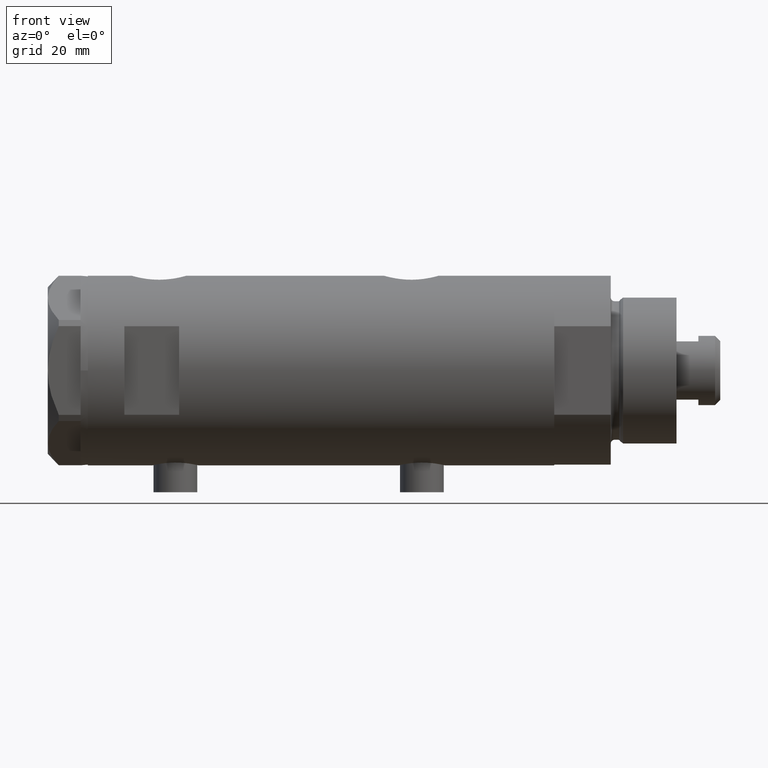
[diagram: clean part render]
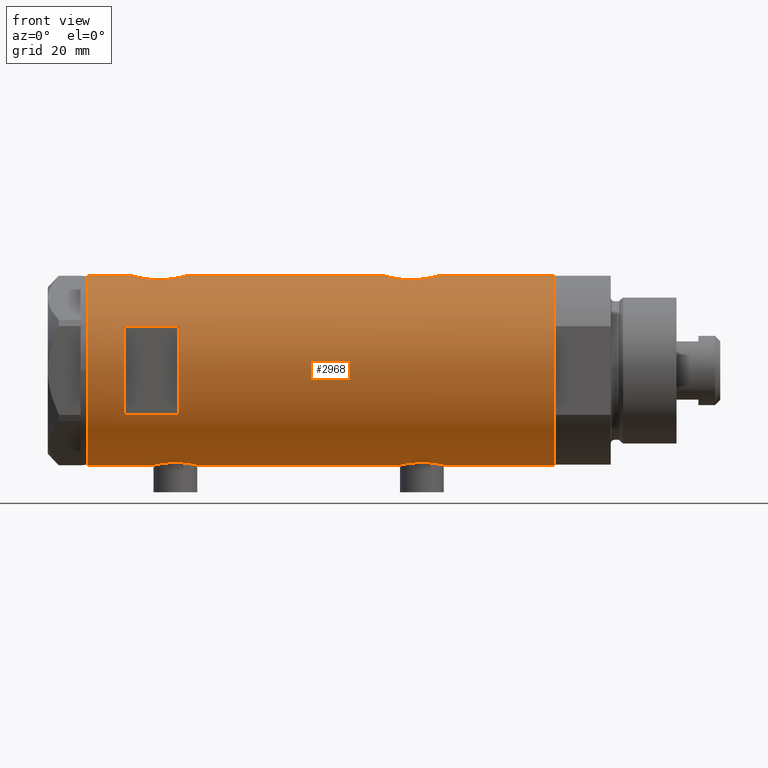
[diagram: same view with one face highlighted and labeled with its STEP entity id]
A machine part, front view. The second image highlights one B-rep face of the part: STEP entity #2968.
In plain terms, the highlighted cylindrical surface (partial cylindrical patch) has radius 26 mm, axis along (-1, -0, 0).
Its self-contained STEP definition (entity closure, byte-faithful):
#2 = DIRECTION ( 'NONE',  ( -0.000000000000000000, -0.000000000000000000, -1.000000000000000000 ) ) ;
#20 = CARTESIAN_POINT ( 'NONE',  ( 25.98569226047905545, -0.9886551788957204101, -32.20082376600176843 ) ) ;
#24 = CARTESIAN_POINT ( 'NONE',  ( 26.00000000000000355, 0.000000000000000000, -63.95000000000000995 ) ) ;
#65 = LINE ( 'NONE', #424, #3496 ) ;
#103 = CARTESIAN_POINT ( 'NONE',  ( 25.17393786935996047, -6.507882790539420093, -28.51037333344033442 ) ) ;
#149 = CARTESIAN_POINT ( 'NONE',  ( -25.31551596256916525, -5.928819821281959612, 37.92988508095918121 ) ) ;
#168 = ORIENTED_EDGE ( 'NONE', *, *, #3292, .F. ) ;
#187 = CARTESIAN_POINT ( 'NONE',  ( 12.12435565298214080, -23.00000000000000355, 53.94999999999999574 ) ) ;
#194 = CARTESIAN_POINT ( 'NONE',  ( 12.12435565298214080, -23.00000000000000355, 38.94999999999999574 ) ) ;
#196 = CARTESIAN_POINT ( 'NONE',  ( -26.00000000000000355, 3.184081677783118585E-15, 63.95000000000000995 ) ) ;
#215 = CARTESIAN_POINT ( 'NONE',  ( -25.78943824387523875, -3.306687742228911819, -32.95754138783468079 ) ) ;
#230 = CARTESIAN_POINT ( 'NONE',  ( 25.41756773306325812, -5.475260495868972122, 49.58140873656950731 ) ) ;
#231 = CARTESIAN_POINT ( 'NONE',  ( -25.25769689814630325, -6.168504065326071206, 38.92353364703254925 ) ) ;
#233 = ORIENTED_EDGE ( 'NONE', *, *, #1967, .F. ) ;
#275 = CARTESIAN_POINT ( 'NONE',  ( 25.00829008792691965, -7.115081037226468119, 46.87301003740818572 ) ) ;
#287 = CARTESIAN_POINT ( 'NONE',  ( -25.67167563980648382, -4.129238867693853621, -32.35934056431106143 ) ) ;
#304 = EDGE_CURVE ( 'NONE', #657, #4723, #2133, .T. ) ;
#356 = VERTEX_POINT ( 'NONE', #4112 ) ;
#367 = AXIS2_PLACEMENT_3D ( 'NONE', #4641, #4259, #4307 ) ;
#389 = CARTESIAN_POINT ( 'NONE',  ( 25.52567976009756379, -4.956266804246105551, -19.09980072540905383 ) ) ;
#413 = CARTESIAN_POINT ( 'NONE',  ( 25.62983961939740496, -4.376509667782456425, -30.84558499042960378 ) ) ;
#424 = CARTESIAN_POINT ( 'NONE',  ( -26.00000000000000355, 3.184081677783118585E-15, -63.95000000000000995 ) ) ;
#436 = CARTESIAN_POINT ( 'NONE',  ( 26.00000000000000000, -0.4982617809740598758, -32.24999999999999289 ) ) ;
#448 = CARTESIAN_POINT ( 'NONE',  ( -26.00000000000000355, 3.184081677783118585E-15, -63.95000000000000995 ) ) ;
#465 = CARTESIAN_POINT ( 'NONE',  ( 24.96970063328116751, -7.247045583599691199, -26.69719214854802658 ) ) ;
#494 = VERTEX_POINT ( 'NONE', #2860 ) ;
#543 = AXIS2_PLACEMENT_3D ( 'NONE', #2387, #2877, #2833 ) ;
#593 = CARTESIAN_POINT ( 'NONE',  ( -25.23758491649666169, -6.250144606721704577, 40.36011699571809430 ) ) ;
#604 = DIRECTION ( 'NONE',  ( 0.000000000000000000, 0.000000000000000000, 1.000000000000000000 ) ) ;
#614 = CARTESIAN_POINT ( 'NONE',  ( 25.93098857934040424, -1.953835360821270184, 37.19226335297439334 ) ) ;
#615 = CARTESIAN_POINT ( 'NONE',  ( -25.87202607293666645, -2.583404329177992675, 34.25526333145487712 ) ) ;
#640 = CARTESIAN_POINT ( 'NONE',  ( 25.78902964777116225, -3.336582972512940781, 37.71524159542261145 ) ) ;
#655 = CARTESIAN_POINT ( 'NONE',  ( -25.64593536028935716, -4.278686337618962554, -23.08968397039123133 ) ) ;
#657 = VERTEX_POINT ( 'NONE', #993 ) ;
#665 = CARTESIAN_POINT ( 'NONE',  ( 25.11342038069227200, -6.734617143597205313, 47.78770695790494472 ) ) ;
#679 = CARTESIAN_POINT ( 'NONE',  ( -25.25769689814630325, -6.168504065326071206, -28.67646635296746283 ) ) ;
#700 = CARTESIAN_POINT ( 'NONE',  ( -25.38744165544135711, -5.612847683295910883, -30.42987583238477001 ) ) ;
#701 = CARTESIAN_POINT ( 'NONE',  ( -25.85385060263650203, -2.778671585188186910, 45.56314451304237423 ) ) ;
#757 = CARTESIAN_POINT ( 'NONE',  ( -25.42883439573800430, -5.424786127492328802, 43.08081457260909275 ) ) ;
#767 = CARTESIAN_POINT ( 'NONE',  ( -26.00000000000000355, 3.184081677783118585E-15, -63.95000000000000995 ) ) ;
#778 = CARTESIAN_POINT ( 'NONE',  ( 24.89475831528845617, -7.500067228253131546, -25.24337428253536331 ) ) ;
#831 = CARTESIAN_POINT ( 'NONE',  ( -25.95206678899177533, -1.628763264760259677, -21.60199186669786542 ) ) ;
#832 = CARTESIAN_POINT ( 'NONE',  ( 26.00000000000000355, -3.975025925197986111E-20, -17.25000000000000000 ) ) ;
#856 = CARTESIAN_POINT ( 'NONE',  ( 24.89854802586675930, -7.487520416261735257, -24.25184316422095776 ) ) ;
#858 = VERTEX_POINT ( 'NONE', #2063 ) ;
#859 = B_SPLINE_CURVE_WITH_KNOTS ( 'NONE', 3,
 ( #832, #4487, #1286, #2886, #1235, #4882, #2808, #2100, #389, #3650, #2840, #1653, #4411, #4461, #2787, #3995, #4071, #3182, #4389, #856, #888, #778, #2422, #3706, #465, #2394, #2043, #2501, #103, #4857, #4021, #2447, #2141, #1602, #413, #2863, #2077, #2019, #3627, #20, #436, #1782 ),
 .UNSPECIFIED., .F., .F.,
 ( 4, 2, 2, 2, 2, 2, 2, 2, 2, 2, 2, 2, 2, 2, 2, 2, 2, 2, 2, 2, 4 ),
 ( 0.02357432247332886047, 0.02504731828495720264, 0.02652031409658554134, 0.02799330990821388351, 0.02946630571984222569, 0.03020280362565639504, 0.03093930153147056439, 0.03241229734309891003, 0.03388529315472725567, 0.03462179106054142502, 0.03535828896635559437, 0.03683128477798394695, 0.03756778268379813018, 0.03830428058961231341, 0.03977727640124066599, 0.04125027221286903245, 0.04198677011868321568, 0.04272326802449739891, 0.04419626383612575149, 0.04566925964775410407, 0.04714225545938246359 ),
 .UNSPECIFIED. ) ;
#888 = CARTESIAN_POINT ( 'NONE',  ( 24.89478872726946079, -7.499966281647700406, -24.50178149365219227 ) ) ;
#891 = VECTOR ( 'NONE', #3246, 1000.000000000000000 ) ;
#895 = DIRECTION ( 'NONE',  ( 0.000000000000000000, 0.000000000000000000, 1.000000000000000000 ) ) ;
#928 = CARTESIAN_POINT ( 'NONE',  ( -25.72076778631231164, -3.815670258243487378, 34.98312189468123279 ) ) ;
#939 = EDGE_CURVE ( 'NONE', #2128, #858, #3330, .T. ) ;
#947 = DIRECTION ( 'NONE',  ( 0.000000000000000000, 0.000000000000000000, 1.000000000000000000 ) ) ;
#972 = ORIENTED_EDGE ( 'NONE', *, *, #2587, .F. ) ;
#978 = CIRCLE ( 'NONE', #367, 26.00000000000000355 ) ;
#985 = CARTESIAN_POINT ( 'NONE',  ( 24.91324908721446008, -7.438459228814657820, 45.44017499374189839 ) ) ;
#993 = CARTESIAN_POINT ( 'NONE',  ( 26.00000000000000355, -3.975025925197986111E-20, -17.25000000000000000 ) ) ;
#1027 = EDGE_CURVE ( 'NONE', #3854, #4723, #3373, .T. ) ;
#1036 = CARTESIAN_POINT ( 'NONE',  ( 0.000000000000000000, 0.000000000000000000, -63.95000000000000995 ) ) ;
#1048 = CARTESIAN_POINT ( 'NONE',  ( -25.57167894663062313, -4.701762988462092174, -23.52719549807583022 ) ) ;
#1065 = VERTEX_POINT ( 'NONE', #194 ) ;
#1105 = EDGE_CURVE ( 'NONE', #3618, #2757, #1110, .T. ) ;
#1110 = LINE ( 'NONE', #4004, #1807 ) ;
#1127 = CARTESIAN_POINT ( 'NONE',  ( -25.67063510297210271, -4.128418051804841227, 44.64682575271267240 ) ) ;
#1132 = CIRCLE ( 'NONE', #543, 26.00000000000000355 ) ;
#1194 = LINE ( 'NONE', #767, #891 ) ;
#1235 = CARTESIAN_POINT ( 'NONE',  ( 25.89059789403176381, -2.425642437452261380, -17.63622552757698969 ) ) ;
#1279 = VERTEX_POINT ( 'NONE', #187 ) ;
#1286 = CARTESIAN_POINT ( 'NONE',  ( 25.98599366666248756, -0.9828433289544070695, -17.29811598276525686 ) ) ;
#1379 = CARTESIAN_POINT ( 'NONE',  ( -25.38662204309617110, -5.616507264474310368, 42.72199377719325497 ) ) ;
#1413 = CARTESIAN_POINT ( 'NONE',  ( 24.95200646071793571, -7.307522494171279526, 42.74392435812723079 ) ) ;
#1429 = CARTESIAN_POINT ( 'NONE',  ( -25.28680988956730502, -6.048472998962281189, -29.27627694188244334 ) ) ;
#1432 = EDGE_CURVE ( 'NONE', #858, #2109, #2621, .T. ) ;
#1437 = CARTESIAN_POINT ( 'NONE',  ( 25.01107424167500071, -7.102941973849614676, 42.02937151337422250 ) ) ;
#1457 = CARTESIAN_POINT ( 'NONE',  ( 24.89478872726946435, -7.499966281647702182, 44.69821850634780702 ) ) ;
#1474 = CARTESIAN_POINT ( 'NONE',  ( -25.67063510297209561, -4.128418051804845668, -22.95317424728735389 ) ) ;
#1476 = CARTESIAN_POINT ( 'NONE',  ( -25.95206678899177888, -1.628763264760260565, 45.99800813330215021 ) ) ;
#1480 = VECTOR ( 'NONE', #5146, 1000.000000000000000 ) ;
#1488 = CARTESIAN_POINT ( 'NONE',  ( 25.59665538672497576, -4.580438224580679396, 50.40889127712392082 ) ) ;
#1507 = CARTESIAN_POINT ( 'NONE',  ( -25.74330903162726614, -3.648508829439214285, 45.02867714715799252 ) ) ;
#1546 = EDGE_CURVE ( 'NONE', #1065, #1279, #1994, .T. ) ;
#1552 = CARTESIAN_POINT ( 'NONE',  ( 12.12435565298214080, -23.00000000000000355, -63.95000000000000995 ) ) ;
#1579 = CARTESIAN_POINT ( 'NONE',  ( -25.99999999999999645, -0.4144764235405757891, -21.39999999999999858 ) ) ;
#1602 = CARTESIAN_POINT ( 'NONE',  ( 25.59500516383205593, -4.575229401795793294, -30.69787755065420143 ) ) ;
#1626 = DIRECTION ( 'NONE',  ( 1.000000000000000000, 0.000000000000000000, 0.000000000000000000 ) ) ;
#1653 = CARTESIAN_POINT ( 'NONE',  ( 25.31004928890824957, -5.952041021437452173, -20.18019400116494211 ) ) ;
#1680 = CARTESIAN_POINT ( 'NONE',  ( -26.00000000000000355, 9.891741702313250758E-16, -21.40000000000000568 ) ) ;
#1695 = ORIENTED_EDGE ( 'NONE', *, *, #2426, .F. ) ;
#1706 = VERTEX_POINT ( 'NONE', #2261 ) ;
#1714 = CARTESIAN_POINT ( 'NONE',  ( 0.000000000000000000, 0.000000000000000000, 53.94999999999999574 ) ) ;
#1747 = CARTESIAN_POINT ( 'NONE',  ( -25.28680988956730857, -6.048472998962280300, 38.32372305811758650 ) ) ;
#1760 = ORIENTED_EDGE ( 'NONE', *, *, #1105, .F. ) ;
#1782 = CARTESIAN_POINT ( 'NONE',  ( 26.00000000000000355, 6.604469597105595072E-16, -32.25000000000000000 ) ) ;
#1798 = CARTESIAN_POINT ( 'NONE',  ( -26.00000000000000000, -0.4086738135806028960, 33.70000000000000995 ) ) ;
#1807 = VECTOR ( 'NONE', #2, 1000.000000000000000 ) ;
#1832 = CARTESIAN_POINT ( 'NONE',  ( 25.78993643992928853, -3.329561377902404029, 51.18821560278738048 ) ) ;
#1833 = CARTESIAN_POINT ( 'NONE',  ( -25.25025691038242570, -6.198787452305309920, 39.12558834604205771 ) ) ;
#1846 = CARTESIAN_POINT ( 'NONE',  ( -25.23758491649666169, -6.250144606721703688, -27.23988300428193554 ) ) ;
#1854 = CARTESIAN_POINT ( 'NONE',  ( 24.89475831528844552, -7.500067228253129770, 43.95662571746462532 ) ) ;
#1876 = CARTESIAN_POINT ( 'NONE',  ( 25.52449676677459323, -4.953491517965875168, 38.81325508665924673 ) ) ;
#1963 = VERTEX_POINT ( 'NONE', #196 ) ;
#1967 = EDGE_CURVE ( 'NONE', #356, #4855, #3317, .T. ) ;
#1994 = LINE ( 'NONE', #1552, #1480 ) ;
#2019 = CARTESIAN_POINT ( 'NONE',  ( 25.88994451797512042, -2.432613607265603495, -31.86140968713203137 ) ) ;
#2029 = DIRECTION ( 'NONE',  ( 1.000000000000000000, 0.000000000000000000, 0.000000000000000000 ) ) ;
#2043 = CARTESIAN_POINT ( 'NONE',  ( 25.03461301890608581, -7.019803056070506919, -27.40183183106897147 ) ) ;
#2058 = ORIENTED_EDGE ( 'NONE', *, *, #2177, .F. ) ;
#2060 = CARTESIAN_POINT ( 'NONE',  ( 26.00000000000000355, 2.393127611988522640E-16, 36.95000000000000284 ) ) ;
#2063 = CARTESIAN_POINT ( 'NONE',  ( -26.00000000000000355, 3.184077527325983904E-15, -33.90000000000001279 ) ) ;
#2077 = CARTESIAN_POINT ( 'NONE',  ( 25.78902964777116225, -3.336582972512953660, -31.48475840457738073 ) ) ;
#2100 = CARTESIAN_POINT ( 'NONE',  ( 25.59665538672496865, -4.580438224580680284, -18.79110872287611400 ) ) ;
#2109 = VERTEX_POINT ( 'NONE', #1680 ) ;
#2128 = VERTEX_POINT ( 'NONE', #2472 ) ;
#2133 = LINE ( 'NONE', #2508, #2730 ) ;
#2141 = CARTESIAN_POINT ( 'NONE',  ( 25.52449676677458967, -4.953491517965880497, -30.38674491334075256 ) ) ;
#2143 = CARTESIAN_POINT ( 'NONE',  ( -25.57228991600092627, -4.705691472451699831, 35.81660309875347536 ) ) ;
#2159 = ORIENTED_EDGE ( 'NONE', *, *, #1546, .F. ) ;
#2177 = EDGE_CURVE ( 'NONE', #657, #1706, #859, .T. ) ;
#2213 = CARTESIAN_POINT ( 'NONE',  ( -25.87202607293667000, -2.583404329177994008, -33.34473666854514562 ) ) ;
#2221 = CARTESIAN_POINT ( 'NONE',  ( 26.00000000000001066, -0.4982617809740571002, 36.95000000000000995 ) ) ;
#2222 = CARTESIAN_POINT ( 'NONE',  ( -25.85288666140180780, -2.767917424206675747, 34.34257790010329359 ) ) ;
#2252 = CARTESIAN_POINT ( 'NONE',  ( 26.00000000000000355, 2.393127611988522640E-16, 36.95000000000000284 ) ) ;
#2261 = CARTESIAN_POINT ( 'NONE',  ( 26.00000000000000355, 6.604469597105595072E-16, -32.25000000000000000 ) ) ;
#2267 = CARTESIAN_POINT ( 'NONE',  ( -25.99009752186832500, -0.8230863847107482423, 46.15917071406681060 ) ) ;
#2278 = CARTESIAN_POINT ( 'NONE',  ( 24.96970063328116751, -7.247045583599692975, 42.50280785145199758 ) ) ;
#2292 = CARTESIAN_POINT ( 'NONE',  ( -25.52190669608696183, -4.968444991210423822, -31.46341092192486855 ) ) ;
#2294 = EDGE_LOOP ( 'NONE', ( #1695, #1760, #168, #2159 ) ) ;
#2300 = CARTESIAN_POINT ( 'NONE',  ( 25.72912156655465665, -3.765948295762488129, 37.94557024600776174 ) ) ;
#2372 = CARTESIAN_POINT ( 'NONE',  ( -25.49846181844015192, -5.083495422175122513, 43.59177503382596797 ) ) ;
#2387 = CARTESIAN_POINT ( 'NONE',  ( 0.000000000000000000, 0.000000000000000000, 63.95000000000000995 ) ) ;
#2394 = CARTESIAN_POINT ( 'NONE',  ( 25.01107424167501136, -7.102941973849615565, -27.17062848662579100 ) ) ;
#2422 = CARTESIAN_POINT ( 'NONE',  ( 24.90947356773249766, -7.451722770779339200, -25.73190841828152742 ) ) ;
#2426 = EDGE_CURVE ( 'NONE', #2757, #1065, #978, .T. ) ;
#2435 = DIRECTION ( 'NONE',  ( -0.000000000000000000, 0.000000000000000000, -1.000000000000000000 ) ) ;
#2447 = CARTESIAN_POINT ( 'NONE',  ( 25.48871066912673200, -5.133852125086503015, -30.22290306743977695 ) ) ;
#2458 = DIRECTION ( 'NONE',  ( 0.000000000000000000, 0.000000000000000000, 1.000000000000000000 ) ) ;
#2472 = CARTESIAN_POINT ( 'NONE',  ( -26.00000000000000355, 3.184081677783118585E-15, -63.95000000000000995 ) ) ;
#2501 = CARTESIAN_POINT ( 'NONE',  ( 25.11243836838846377, -6.738202653785828389, -28.07956649155160278 ) ) ;
#2508 = CARTESIAN_POINT ( 'NONE',  ( 26.00000000000000355, 0.000000000000000000, -63.95000000000000995 ) ) ;
#2512 = CARTESIAN_POINT ( 'NONE',  ( 26.00000000000000355, 0.000000000000000000, -63.95000000000000995 ) ) ;
#2534 = LINE ( 'NONE', #2512, #5008 ) ;
#2563 = CARTESIAN_POINT ( 'NONE',  ( -25.28632996747171902, -6.050474653715411932, 41.56911870841535972 ) ) ;
#2587 = EDGE_CURVE ( 'NONE', #1963, #4464, #1132, .T. ) ;
#2619 = CARTESIAN_POINT ( 'NONE',  ( 25.17393786935996403, -6.507882790539422757, 40.68962666655968974 ) ) ;
#2621 = B_SPLINE_CURVE_WITH_KNOTS ( 'NONE', 3,
 ( #3055, #3472, #5026, #3085, #4996, #2213, #2690, #4601, #215, #4676, #287, #2664, #2292, #3921, #700, #2635, #1429, #679, #2712, #3503, #4311, #1846, #3845, #3034, #5047, #4625, #5102, #4645, #4699, #1048, #5069, #655, #1474, #3108, #2763, #4775, #5173, #3993, #831, #3530, #1579, #3602 ),
 .UNSPECIFIED., .F., .F.,
 ( 4, 2, 2, 2, 2, 2, 2, 2, 2, 2, 2, 2, 2, 2, 2, 2, 2, 2, 2, 2, 4 ),
 ( 0.01961238453869442941, 0.02083783025472766420, 0.02206327597076090247, 0.02267599882877751813, 0.02328872168679413032, 0.02451416740282735818, 0.02573961311886058950, 0.02696505883489381389, 0.02819050455092704521, 0.02880322740894365394, 0.02941595026696026266, 0.03064139598299348011, 0.03186684169902669755, 0.03309228741505991500, 0.03370501027307653413, 0.03431773313109314633, 0.03493045598910975852, 0.03554317884712637071, 0.03676862456315959510, 0.03799407027919281948, 0.03921951599522604387 ),
 .UNSPECIFIED. ) ;
#2635 = CARTESIAN_POINT ( 'NONE',  ( -25.31551596256915815, -5.928819821281960500, -29.67011491904085929 ) ) ;
#2640 = CARTESIAN_POINT ( 'NONE',  ( 25.31004928890825312, -5.952041021437453949, 49.01980599883506073 ) ) ;
#2664 = CARTESIAN_POINT ( 'NONE',  ( -25.57228991600092272, -4.705691472451700719, -31.78339690124654027 ) ) ;
#2674 = CARTESIAN_POINT ( 'NONE',  ( 25.89059789403177447, -2.425642437452259603, 51.56377447242302736 ) ) ;
#2679 = FACE_OUTER_BOUND ( 'NONE', #2714, .T. ) ;
#2690 = CARTESIAN_POINT ( 'NONE',  ( -25.85288666140181135, -2.767917424206676635, -33.25742209989672205 ) ) ;
#2702 = FACE_BOUND ( 'NONE', #2294, .T. ) ;
#2712 = CARTESIAN_POINT ( 'NONE',  ( -25.25025691038242215, -6.198787452305309920, -28.47441165395796503 ) ) ;
#2713 = CARTESIAN_POINT ( 'NONE',  ( -25.59645788645698872, -4.565358797148513226, 44.22330529203480864 ) ) ;
#2714 = EDGE_LOOP ( 'NONE', ( #4649, #5164, #4833, #2058, #4994, #2887, #3431, #972, #4967, #233, #4189, #3221 ) ) ;
#2730 = VECTOR ( 'NONE', #947, 1000.000000000000000 ) ;
#2738 = CIRCLE ( 'NONE', #5161, 26.00000000000000355 ) ;
#2739 = CARTESIAN_POINT ( 'NONE',  ( -25.81232680456767170, -3.137210741985118290, 45.37113657221578933 ) ) ;
#2740 = VECTOR ( 'NONE', #4953, 1000.000000000000000 ) ;
#2757 = VERTEX_POINT ( 'NONE', #4584 ) ;
#2763 = CARTESIAN_POINT ( 'NONE',  ( -25.74330903162726614, -3.648508829439216061, -22.57132285284203732 ) ) ;
#2787 = CARTESIAN_POINT ( 'NONE',  ( 25.11342038069227200, -6.734617143597201760, -21.41229304209504747 ) ) ;
#2808 = CARTESIAN_POINT ( 'NONE',  ( 25.72873412774686486, -3.768477344985556421, -18.24712539855537585 ) ) ;
#2833 = DIRECTION ( 'NONE',  ( 1.000000000000000000, 0.000000000000000000, 0.000000000000000000 ) ) ;
#2840 = CARTESIAN_POINT ( 'NONE',  ( 25.38109653984943392, -5.641393955635657598, -19.80180907551248737 ) ) ;
#2860 = CARTESIAN_POINT ( 'NONE',  ( 26.00000000000000355, 0.000000000000000000, -63.95000000000000995 ) ) ;
#2863 = CARTESIAN_POINT ( 'NONE',  ( 25.72912156655465665, -3.765948295762493458, -31.25442975399221623 ) ) ;
#2877 = DIRECTION ( 'NONE',  ( 0.000000000000000000, 0.000000000000000000, 1.000000000000000000 ) ) ;
#2886 = CARTESIAN_POINT ( 'NONE',  ( 25.93085545515511470, -1.956676574435509242, -17.49272963169731909 ) ) ;
#2887 = ORIENTED_EDGE ( 'NONE', *, *, #1027, .F. ) ;
#2894 = LINE ( 'NONE', #24, #3659 ) ;
#2955 = CARTESIAN_POINT ( 'NONE',  ( -25.24765475072630139, -6.209883762780005867, 40.76678184355099432 ) ) ;
#2968 = ADVANCED_FACE ( 'NONE', ( #2679, #2702 ), #3098, .T. ) ;
#2982 = CARTESIAN_POINT ( 'NONE',  ( 26.00000000000000711, -0.4910237949823162418, 51.95000000000000995 ) ) ;
#3018 = CARTESIAN_POINT ( 'NONE',  ( 25.38109653984944103, -5.641393955635660262, 49.39819092448751547 ) ) ;
#3023 = CARTESIAN_POINT ( 'NONE',  ( 26.00000000000000355, 0.000000000000000000, 63.95000000000000995 ) ) ;
#3034 = CARTESIAN_POINT ( 'NONE',  ( -25.28632996747171546, -6.050474653715413709, -26.03088129158463815 ) ) ;
#3042 = CARTESIAN_POINT ( 'NONE',  ( 24.89854802586676286, -7.487520416261735257, 44.94815683577904508 ) ) ;
#3055 = CARTESIAN_POINT ( 'NONE',  ( -26.00000000000000355, 3.184077527325983904E-15, -33.90000000000001279 ) ) ;
#3063 = CARTESIAN_POINT ( 'NONE',  ( -26.00000000000000355, -2.813058302341337106E-16, 46.20000000000000284 ) ) ;
#3064 = CARTESIAN_POINT ( 'NONE',  ( 25.59500516383206303, -4.575229401795788853, 38.50212244934581207 ) ) ;
#3065 = CARTESIAN_POINT ( 'NONE',  ( -25.92425332714050867, -2.018894156999440526, 34.02103879324670999 ) ) ;
#3085 = CARTESIAN_POINT ( 'NONE',  ( -25.95218276861526618, -1.627663810194431626, -33.69850980387604267 ) ) ;
#3086 = CARTESIAN_POINT ( 'NONE',  ( -25.92364458890658696, -2.026637113504536458, 45.87630990691474153 ) ) ;
#3093 = CARTESIAN_POINT ( 'NONE',  ( 25.11243836838846732, -6.738202653785822172, 41.12043350844842848 ) ) ;
#3098 = CYLINDRICAL_SURFACE ( 'NONE', #4405, 26.00000000000000355 ) ;
#3108 = CARTESIAN_POINT ( 'NONE',  ( -25.71926338401910073, -3.813768894920913421, -22.69427860166186051 ) ) ;
#3182 = CARTESIAN_POINT ( 'NONE',  ( 24.92415241886516242, -7.401968919186685092, -23.51676462555185765 ) ) ;
#3221 = ORIENTED_EDGE ( 'NONE', *, *, #1432, .F. ) ;
#3237 = CARTESIAN_POINT ( 'NONE',  ( 26.00000000000000355, -3.975025925197986111E-20, 51.95000000000000284 ) ) ;
#3246 = DIRECTION ( 'NONE',  ( 0.000000000000000000, 0.000000000000000000, 1.000000000000000000 ) ) ;
#3292 = EDGE_CURVE ( 'NONE', #1279, #3618, #2738, .T. ) ;
#3317 = B_SPLINE_CURVE_WITH_KNOTS ( 'NONE', 3,
 ( #3412, #1798, #3461, #5056, #3065, #615, #2222, #3827, #3801, #928, #5010, #2143, #3749, #4977, #4201, #149, #1747, #231, #1833, #3354, #4954, #593, #2955, #2563, #3380, #1379, #757, #2372, #4369, #3971, #2713, #4752, #1127, #4312, #1507, #2739, #701, #3086, #1476, #2267, #4289, #5103 ),
 .UNSPECIFIED., .F., .F.,
 ( 4, 2, 2, 2, 2, 2, 2, 2, 2, 2, 2, 2, 2, 2, 2, 2, 2, 2, 2, 2, 4 ),
 ( 0.01961238453869442941, 0.02083783025472767114, 0.02206327597076090941, 0.02267599882877753201, 0.02328872168679415461, 0.02451416740282739287, 0.02573961311886063114, 0.02696505883489386940, 0.02819050455092710766, 0.02880322740894371986, 0.02941595026696032858, 0.03064139598299354950, 0.03186684169902676694, 0.03309228741505998439, 0.03370501027307658271, 0.03431773313109318796, 0.03493045598910978627, 0.03554317884712639153, 0.03676862456315960898, 0.03799407027919282642, 0.03921951599522604387 ),
 .UNSPECIFIED. ) ;
#3330 = LINE ( 'NONE', #448, #2740 ) ;
#3354 = CARTESIAN_POINT ( 'NONE',  ( -25.24022290516698419, -6.239518219915426656, 39.53402784061567843 ) ) ;
#3373 = B_SPLINE_CURVE_WITH_KNOTS ( 'NONE', 3,
 ( #3825, #2982, #4582, #5055, #2674, #1832, #4655, #1488, #3440, #230, #3018, #2640, #4273, #3851, #665, #275, #5034, #3480, #985, #3042, #1457, #1854, #3513, #1413, #2278, #1437, #3874, #3093, #2619, #4243, #4632, #4683, #1876, #3064, #4200, #2300, #640, #3411, #614, #5081, #2221, #2252 ),
 .UNSPECIFIED., .F., .F.,
 ( 4, 2, 2, 2, 2, 2, 2, 2, 2, 2, 2, 2, 2, 2, 2, 2, 2, 2, 2, 2, 4 ),
 ( 0.02357432247332888128, 0.02504731828495723733, 0.02652031409658558991, 0.02799330990821394596, 0.02946630571984230201, 0.03020280362565647136, 0.03093930153147064072, 0.03241229734309895860, 0.03388529315472728343, 0.03462179106054144584, 0.03535828896635560825, 0.03683128477798394695, 0.03756778268379813018, 0.03830428058961230647, 0.03977727640124069375, 0.04125027221286907408, 0.04198677011868326425, 0.04272326802449744054, 0.04419626383612580006, 0.04566925964775415958, 0.04714225545938251216 ),
 .UNSPECIFIED. ) ;
#3375 = EDGE_CURVE ( 'NONE', #4855, #1963, #65, .T. ) ;
#3380 = CARTESIAN_POINT ( 'NONE',  ( -25.31538696791480447, -5.929326713517952818, 41.96796632208099709 ) ) ;
#3411 = CARTESIAN_POINT ( 'NONE',  ( 25.88994451797512042, -2.432613607265590172, 37.33859031286797858 ) ) ;
#3412 = CARTESIAN_POINT ( 'NONE',  ( -26.00000000000000355, 3.184077527313362130E-15, 33.70000000000000995 ) ) ;
#3416 = AXIS2_PLACEMENT_3D ( 'NONE', #4211, #604, #1626 ) ;
#3417 = DIRECTION ( 'NONE',  ( 0.000000000000000000, 0.000000000000000000, 1.000000000000000000 ) ) ;
#3431 = ORIENTED_EDGE ( 'NONE', *, *, #3743, .T. ) ;
#3440 = CARTESIAN_POINT ( 'NONE',  ( 25.52567976009756379, -4.956266804246105551, 50.10019927459094191 ) ) ;
#3461 = CARTESIAN_POINT ( 'NONE',  ( -25.99036913299955742, -0.8159609457881432659, 33.73968856968108554 ) ) ;
#3472 = CARTESIAN_POINT ( 'NONE',  ( -26.00000000000000355, -0.4086738135806045058, -33.90000000000001990 ) ) ;
#3480 = CARTESIAN_POINT ( 'NONE',  ( 24.92415241886515176, -7.401968919186680651, 45.68323537444814519 ) ) ;
#3496 = VECTOR ( 'NONE', #2458, 1000.000000000000000 ) ;
#3503 = CARTESIAN_POINT ( 'NONE',  ( -25.24022290516699485, -6.239518219915428432, -28.06597215938432655 ) ) ;
#3513 = CARTESIAN_POINT ( 'NONE',  ( 24.90947356773250121, -7.451722770779339200, 43.46809158171848964 ) ) ;
#3530 = CARTESIAN_POINT ( 'NONE',  ( -25.99009752186833566, -0.8230863847107473541, -21.44082928593318016 ) ) ;
#3602 = CARTESIAN_POINT ( 'NONE',  ( -26.00000000000000355, 9.891741702313250758E-16, -21.40000000000000568 ) ) ;
#3618 = VERTEX_POINT ( 'NONE', #4705 ) ;
#3627 = CARTESIAN_POINT ( 'NONE',  ( 25.93098857934040780, -1.953835360821264411, -32.00773664702560950 ) ) ;
#3650 = CARTESIAN_POINT ( 'NONE',  ( 25.41756773306324035, -5.475260495868973010, -19.61859126343050974 ) ) ;
#3659 = VECTOR ( 'NONE', #895, 1000.000000000000000 ) ;
#3706 = CARTESIAN_POINT ( 'NONE',  ( 24.95200646071793926, -7.307522494171277749, -26.45607564187278982 ) ) ;
#3717 = DIRECTION ( 'NONE',  ( 0.000000000000000000, 0.000000000000000000, 1.000000000000000000 ) ) ;
#3743 = EDGE_CURVE ( 'NONE', #3854, #4464, #2894, .T. ) ;
#3749 = CARTESIAN_POINT ( 'NONE',  ( -25.52190669608696183, -4.968444991210422934, 36.13658907807516130 ) ) ;
#3801 = CARTESIAN_POINT ( 'NONE',  ( -25.78943824387524231, -3.306687742228910487, 34.64245861216535616 ) ) ;
#3825 = CARTESIAN_POINT ( 'NONE',  ( 26.00000000000000355, -3.975025925197986111E-20, 51.95000000000000284 ) ) ;
#3827 = CARTESIAN_POINT ( 'NONE',  ( -25.81160981652327280, -3.129523010631799718, 34.53607026277927616 ) ) ;
#3845 = CARTESIAN_POINT ( 'NONE',  ( -25.24765475072629783, -6.209883762780005867, -26.83321815644901065 ) ) ;
#3851 = CARTESIAN_POINT ( 'NONE',  ( 25.17510548814052740, -6.503212750695464450, 48.21761787815347589 ) ) ;
#3854 = VERTEX_POINT ( 'NONE', #3237 ) ;
#3862 = EDGE_CURVE ( 'NONE', #2128, #494, #4831, .T. ) ;
#3874 = CARTESIAN_POINT ( 'NONE',  ( 25.03461301890608581, -7.019803056070501590, 41.79816816893102072 ) ) ;
#3921 = CARTESIAN_POINT ( 'NONE',  ( -25.42977453177915592, -5.420307583276851915, -30.78812271793362498 ) ) ;
#3971 = CARTESIAN_POINT ( 'NONE',  ( -25.57167894663061958, -4.701762988462087733, 44.07280450192416765 ) ) ;
#3993 = CARTESIAN_POINT ( 'NONE',  ( -25.92364458890659762, -2.026637113504535570, -21.72369009308525278 ) ) ;
#3995 = CARTESIAN_POINT ( 'NONE',  ( 25.00829008792691965, -7.115081037226463678, -22.32698996259181001 ) ) ;
#4004 = CARTESIAN_POINT ( 'NONE',  ( -12.12435565298214080, -23.00000000000000355, -63.95000000000000995 ) ) ;
#4021 = CARTESIAN_POINT ( 'NONE',  ( 25.38125492692911322, -5.649348210287286953, -29.70694334346396204 ) ) ;
#4071 = CARTESIAN_POINT ( 'NONE',  ( 24.96672817551788270, -7.257586026187391681, -22.79615800278702409 ) ) ;
#4112 = CARTESIAN_POINT ( 'NONE',  ( -26.00000000000000355, 3.184077527313362130E-15, 33.70000000000000995 ) ) ;
#4189 = ORIENTED_EDGE ( 'NONE', *, *, #4571, .F. ) ;
#4200 = CARTESIAN_POINT ( 'NONE',  ( 25.62983961939739785, -4.376509667782453761, 38.35441500957040262 ) ) ;
#4201 = CARTESIAN_POINT ( 'NONE',  ( -25.38744165544137132, -5.612847683295914436, 37.17012416761524918 ) ) ;
#4211 = CARTESIAN_POINT ( 'NONE',  ( 0.000000000000000000, 0.000000000000000000, -63.95000000000000995 ) ) ;
#4243 = CARTESIAN_POINT ( 'NONE',  ( 25.30930190055639883, -5.959775463244126215, 39.87025956521971892 ) ) ;
#4259 = DIRECTION ( 'NONE',  ( 0.000000000000000000, 0.000000000000000000, 1.000000000000000000 ) ) ;
#4273 = CARTESIAN_POINT ( 'NONE',  ( 25.27534302296962565, -6.097250460344749712, 48.82409613097076573 ) ) ;
#4278 = DIRECTION ( 'NONE',  ( 1.000000000000000000, 0.000000000000000000, 0.000000000000000000 ) ) ;
#4289 = CARTESIAN_POINT ( 'NONE',  ( -25.99999999999998934, -0.4144764235405755670, 46.19999999999998863 ) ) ;
#4307 = DIRECTION ( 'NONE',  ( -1.000000000000000000, 0.000000000000000000, 0.000000000000000000 ) ) ;
#4311 = CARTESIAN_POINT ( 'NONE',  ( -25.23763877699557057, -6.249927116972442853, -27.85835527665468803 ) ) ;
#4312 = CARTESIAN_POINT ( 'NONE',  ( -25.71926338401908652, -3.813768894920905872, 44.90572139833817289 ) ) ;
#4369 = CARTESIAN_POINT ( 'NONE',  ( -25.52274351135605102, -4.960534548086199536, 43.75751745340735255 ) ) ;
#4389 = CARTESIAN_POINT ( 'NONE',  ( 24.91324908721446008, -7.438459228814659596, -23.75982500625810445 ) ) ;
#4405 = AXIS2_PLACEMENT_3D ( 'NONE', #1036, #3417, #4278 ) ;
#4411 = CARTESIAN_POINT ( 'NONE',  ( 25.27534302296961144, -6.097250460344744383, -20.37590386902925843 ) ) ;
#4461 = CARTESIAN_POINT ( 'NONE',  ( 25.17510548814052740, -6.503212750695460009, -20.98238212184651275 ) ) ;
#4464 = VERTEX_POINT ( 'NONE', #3023 ) ;
#4487 = CARTESIAN_POINT ( 'NONE',  ( 26.00000000000000355, -0.4910237949823167969, -17.25000000000000355 ) ) ;
#4571 = EDGE_CURVE ( 'NONE', #2109, #356, #1194, .T. ) ;
#4582 = CARTESIAN_POINT ( 'NONE',  ( 25.98599366666249466, -0.9828433289544075135, 51.90188401723472822 ) ) ;
#4584 = CARTESIAN_POINT ( 'NONE',  ( -12.12435565298214080, -23.00000000000000355, 38.94999999999999574 ) ) ;
#4601 = CARTESIAN_POINT ( 'NONE',  ( -25.81160981652327280, -3.129523010631799274, -33.06392973722074657 ) ) ;
#4625 = CARTESIAN_POINT ( 'NONE',  ( -25.38662204309616754, -5.616507264474312144, -24.87800622280676777 ) ) ;
#4632 = CARTESIAN_POINT ( 'NONE',  ( 25.38125492692911322, -5.649348210287286953, 39.49305665653605502 ) ) ;
#4641 = CARTESIAN_POINT ( 'NONE',  ( 0.000000000000000000, 0.000000000000000000, 38.94999999999999574 ) ) ;
#4645 = CARTESIAN_POINT ( 'NONE',  ( -25.49846181844015192, -5.083495422175126066, -24.00822496617402635 ) ) ;
#4649 = ORIENTED_EDGE ( 'NONE', *, *, #939, .F. ) ;
#4655 = CARTESIAN_POINT ( 'NONE',  ( 25.72873412774685775, -3.768477344985551536, 50.95287460144461988 ) ) ;
#4674 = EDGE_CURVE ( 'NONE', #494, #1706, #2534, .T. ) ;
#4676 = CARTESIAN_POINT ( 'NONE',  ( -25.72076778631230454, -3.815670258243487822, -32.61687810531881127 ) ) ;
#4683 = CARTESIAN_POINT ( 'NONE',  ( 25.48871066912672489, -5.133852125086502127, 38.97709693256022945 ) ) ;
#4699 = CARTESIAN_POINT ( 'NONE',  ( -25.52274351135604036, -4.960534548086201312, -23.84248254659267374 ) ) ;
#4705 = CARTESIAN_POINT ( 'NONE',  ( -12.12435565298214080, -23.00000000000000355, 53.94999999999999574 ) ) ;
#4723 = VERTEX_POINT ( 'NONE', #2060 ) ;
#4752 = CARTESIAN_POINT ( 'NONE',  ( -25.64593536028936782, -4.278686337618957225, 44.51031602960880207 ) ) ;
#4775 = CARTESIAN_POINT ( 'NONE',  ( -25.81232680456767881, -3.137210741985117846, -22.22886342778422630 ) ) ;
#4831 = CIRCLE ( 'NONE', #3416, 26.00000000000000355 ) ;
#4833 = ORIENTED_EDGE ( 'NONE', *, *, #4674, .T. ) ;
#4855 = VERTEX_POINT ( 'NONE', #3063 ) ;
#4857 = CARTESIAN_POINT ( 'NONE',  ( 25.30930190055639883, -5.959775463244125326, -29.32974043478030168 ) ) ;
#4882 = CARTESIAN_POINT ( 'NONE',  ( 25.78993643992928853, -3.329561377902408470, -18.01178439721262592 ) ) ;
#4953 = DIRECTION ( 'NONE',  ( 0.000000000000000000, 0.000000000000000000, 1.000000000000000000 ) ) ;
#4954 = CARTESIAN_POINT ( 'NONE',  ( -25.23763877699556701, -6.249927116972441965, 39.74164472334533116 ) ) ;
#4967 = ORIENTED_EDGE ( 'NONE', *, *, #3375, .F. ) ;
#4977 = CARTESIAN_POINT ( 'NONE',  ( -25.42977453177915947, -5.420307583276853691, 36.81187728206637644 ) ) ;
#4994 = ORIENTED_EDGE ( 'NONE', *, *, #304, .T. ) ;
#4996 = CARTESIAN_POINT ( 'NONE',  ( -25.92425332714051223, -2.018894156999441858, -33.57896120675329854 ) ) ;
#5008 = VECTOR ( 'NONE', #3717, 1000.000000000000000 ) ;
#5010 = CARTESIAN_POINT ( 'NONE',  ( -25.67167563980648382, -4.129238867693851844, 35.24065943568895420 ) ) ;
#5026 = CARTESIAN_POINT ( 'NONE',  ( -25.99036913299956097, -0.8159609457881449313, -33.86031143031890878 ) ) ;
#5034 = CARTESIAN_POINT ( 'NONE',  ( 24.96672817551788626, -7.257586026187397898, 46.40384199721297165 ) ) ;
#5047 = CARTESIAN_POINT ( 'NONE',  ( -25.31538696791481158, -5.929326713517954595, -25.63203367791900433 ) ) ;
#5055 = CARTESIAN_POINT ( 'NONE',  ( 25.93085545515512180, -1.956676574435509686, 51.70727036830268020 ) ) ;
#5056 = CARTESIAN_POINT ( 'NONE',  ( -25.95218276861526618, -1.627663810194429406, 33.90149019612396586 ) ) ;
#5069 = CARTESIAN_POINT ( 'NONE',  ( -25.59645788645698872, -4.565358797148519443, -23.37669470796522120 ) ) ;
#5081 = CARTESIAN_POINT ( 'NONE',  ( 25.98569226047905190, -0.9886551788957265163, 36.99917623399823441 ) ) ;
#5102 = CARTESIAN_POINT ( 'NONE',  ( -25.42883439573800075, -5.424786127492330579, -24.51918542739092288 ) ) ;
#5103 = CARTESIAN_POINT ( 'NONE',  ( -26.00000000000000355, -2.813058302341337106E-16, 46.20000000000000284 ) ) ;
#5146 = DIRECTION ( 'NONE',  ( 0.000000000000000000, 0.000000000000000000, 1.000000000000000000 ) ) ;
#5161 = AXIS2_PLACEMENT_3D ( 'NONE', #1714, #2435, #2029 ) ;
#5164 = ORIENTED_EDGE ( 'NONE', *, *, #3862, .T. ) ;
#5173 = CARTESIAN_POINT ( 'NONE',  ( -25.85385060263650558, -2.778671585188185134, -22.03685548695763430 ) ) ;